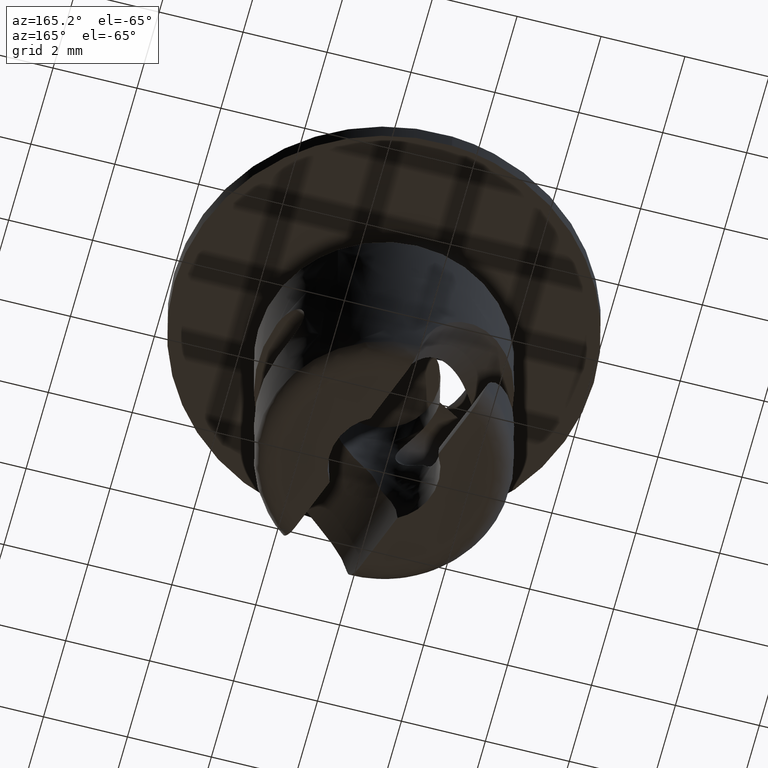
[diagram: clean part render]
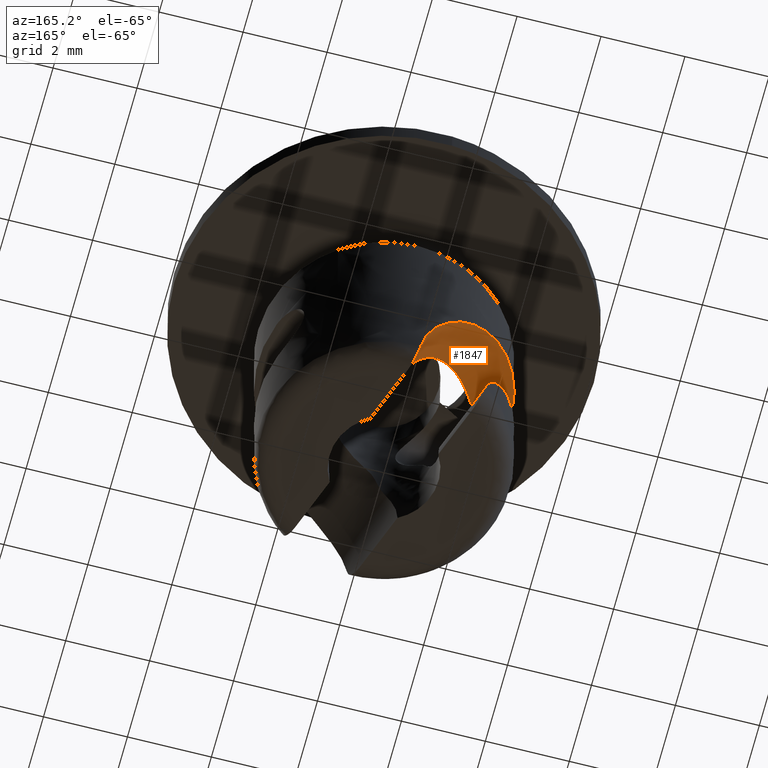
[diagram: same view with one face highlighted and labeled with its STEP entity id]
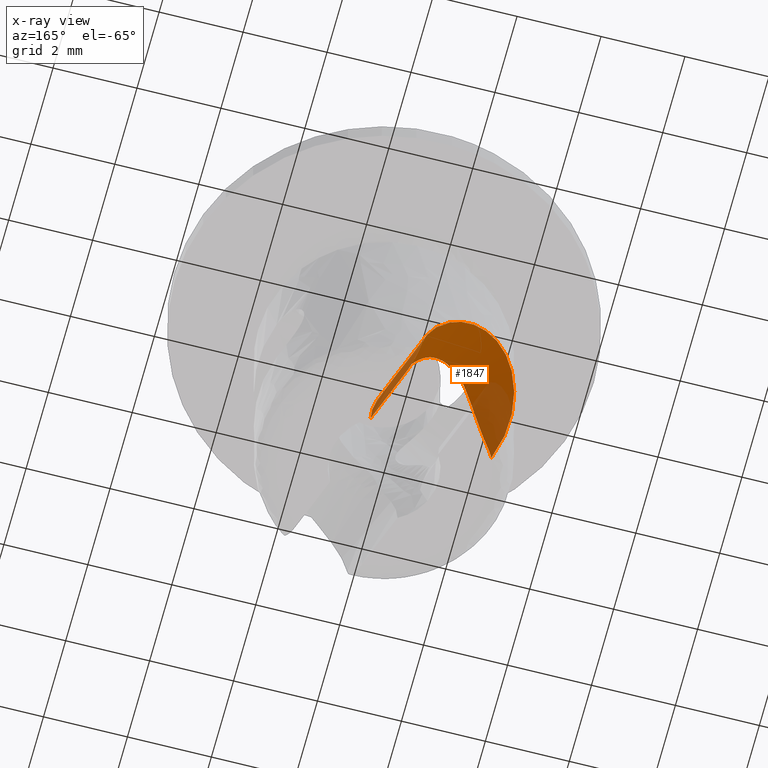
[diagram: x-ray of the same camera — body ghosted, the highlighted face saturated]
A machine part, auxiliary view. The second image highlights one B-rep face of the part: STEP entity #1847.
The next image is the same camera in x-ray: the body ghosted, the highlighted face saturated — about 27% of this face is hidden behind the body in this view.
In plain terms, the highlighted face is a freeform B-spline surface patch.
Its self-contained STEP definition (entity closure, byte-faithful):
#961=CARTESIAN_POINT('',(0.622617727544132,1.141204261010176,-7.400000000000000));
#962=VERTEX_POINT('',#961);
#979=CARTESIAN_POINT('',(0.129273508809591,2.496655434760685,-7.400000000000000));
#980=VERTEX_POINT('',#979);
#981=CARTESIAN_POINT('',(0.622617727544132,1.141204261010176,-7.400000000000000));
#982=CARTESIAN_POINT('',(0.129273508809591,2.496655434760685,-7.400000000000000));
#983=QUASI_UNIFORM_CURVE('',1,(#981,#982),.UNSPECIFIED.,.F.,.U.);
#984=EDGE_CURVE('',#962,#980,#983,.T.);
#1182=CARTESIAN_POINT('',(-2.819077636768030,-1.026061049779424,-3.200000000000000));
#1183=VERTEX_POINT('',#1182);
#1205=CARTESIAN_POINT('',(0.327074163612471,1.258182217128030,-6.001042522368020));
#1206=VERTEX_POINT('',#1205);
#1207=CARTESIAN_POINT('',(0.327074163612471,1.258182217128030,-6.001042522368020));
#1208=CARTESIAN_POINT('',(0.297160822882278,1.306387415373979,-5.968655603151939));
#1209=CARTESIAN_POINT('',(0.238428021352300,1.401035029855732,-5.905066099203100));
#1210=CARTESIAN_POINT('',(0.146580511125379,1.523867997953392,-5.793064256109237));
#1211=CARTESIAN_POINT('',(0.053356301891182,1.627819606234189,-5.671893886555184));
#1212=CARTESIAN_POINT('',(-0.042500015718187,1.711458212268306,-5.540923409864320));
#1213=CARTESIAN_POINT('',(-0.141877534685262,1.774655068140869,-5.401260271351316));
#1214=CARTESIAN_POINT('',(-0.245790647008264,1.816717428023552,-5.253677357550307));
#1215=CARTESIAN_POINT('',(-0.401065727092740,1.847083028196332,-5.035158927700183));
#1216=CARTESIAN_POINT('',(-0.621213557905337,1.812628515502009,-4.733544132776482));
#1217=CARTESIAN_POINT('',(-0.934604013140282,1.633797352816389,-4.343489632897303));
#1218=CARTESIAN_POINT('',(-1.300025947447670,1.308141512217294,-3.963506008242098));
#1219=CARTESIAN_POINT('',(-1.637793963453194,0.896636183380158,-3.686832217401598));
#1220=CARTESIAN_POINT('',(-1.940918809093320,0.397179193438366,-3.476144615445608));
#1221=CARTESIAN_POINT('',(-2.180366141895265,-0.008211556337445,-3.354122071888697));
#1222=CARTESIAN_POINT('',(-2.399010742276171,-0.366100519898799,-3.278165440571633));
#1223=CARTESIAN_POINT('',(-2.513438628017001,-0.540741225558762,-3.248331115126779));
#1224=CARTESIAN_POINT('',(-2.600388778641157,-0.666189648130239,-3.230368089110627));
#1225=CARTESIAN_POINT('',(-2.664787717910890,-0.757118608930589,-3.219084246987745));
#1226=CARTESIAN_POINT('',(-2.729707402255897,-0.848982534875780,-3.209990711441483));
#1227=CARTESIAN_POINT('',(-2.778066178238023,-0.928136177142213,-3.204338282532784));
#1228=CARTESIAN_POINT('',(-2.811584457303801,-0.983039683509505,-3.201188283404195));
#1229=CARTESIAN_POINT('',(-2.817136993439812,-1.014919033520359,-3.200307751105041));
#1230=CARTESIAN_POINT('',(-2.819077636768030,-1.026061049779424,-3.200000000000000));
#1231=B_SPLINE_CURVE_WITH_KNOTS('',3,(#1207,#1208,#1209,#1210,#1211,#1212,#1213,#1214,#1215,#1216,#1217,#1218,#1219,#1220,#1221,#1222,#1223,#1224,#1225,#1226,#1227,#1228,#1229,#1230),.UNSPECIFIED.,.F.,.U.,(4,1,1,1,1,1,1,1,1,1,1,1,1,1,1,1,1,1,1,1,1,4),(0.0,0.033735217297564,0.066236795147011,0.097895978814564,0.129135667579118,0.160395777020048,0.192115358477158,0.224714888653948,0.299555256337571,0.383301690319912,0.496812339854876,0.616488507784937,0.689822469858442,0.816606115545376,0.866754935683801,0.909566513421504,0.925334687406508,0.946009537405301,0.967362844712416,0.983404018732769,0.994199609055653,1.0),.UNSPECIFIED.);
#1232=EDGE_CURVE('',#1206,#1183,#1231,.T.);
#1734=CARTESIAN_POINT('',(0.940698506657678,0.262617061012638,-7.509941010746490));
#1735=CARTESIAN_POINT('',(-0.136713806084479,3.222781036716124,-7.509941010746490));
#1736=CARTESIAN_POINT('',(0.955327241236370,0.267941488606611,-6.946265593221927));
#1737=CARTESIAN_POINT('',(-0.122085071505786,3.228105464310097,-6.946265593221927));
#1738=CARTESIAN_POINT('',(0.863144674924619,0.234389755398708,-6.385226907518290));
#1739=CARTESIAN_POINT('',(-0.214267637817537,3.194553731102194,-6.385226907518290));
#1740=CARTESIAN_POINT('',(0.476150148061066,0.093535170440278,-5.335329519685502));
#1741=CARTESIAN_POINT('',(-0.601262164681090,3.053699146143762,-5.335329519685502));
#1742=CARTESIAN_POINT('',(0.185300685008096,-0.012325449180715,-4.857220881147778));
#1743=CARTESIAN_POINT('',(-0.892111627734060,2.947838526522769,-4.857220881147778));
#1744=CARTESIAN_POINT('',(-0.556417464624153,-0.282288962539192,-4.051700433942662));
#1745=CARTESIAN_POINT('',(-1.633829777366308,2.677875013164291,-4.051700433942663));
#1746=CARTESIAN_POINT('',(-0.999691583040992,-0.443627657632502,-3.732536475143270));
#1747=CARTESIAN_POINT('',(-2.077103895783147,2.516536318070981,-3.732536475143272));
#1748=CARTESIAN_POINT('',(-1.978207369437935,-0.799778521277171,-3.299462900561080));
#1749=CARTESIAN_POINT('',(-3.055619682180090,2.160385454426311,-3.299462900561081));
#1750=CARTESIAN_POINT('',(-2.503429861210069,-0.990944005422329,-3.189987592854934));
#1751=CARTESIAN_POINT('',(-3.580842173952225,1.969219970281153,-3.189987592854936));
#1752=CARTESIAN_POINT('',(-3.033299316952162,-1.183800847289287,-3.194101489152588));
#1753=CARTESIAN_POINT('',(-4.110711629694318,1.776363128414194,-3.194101489152589));
#1754=B_SPLINE_SURFACE_WITH_KNOTS('',1,3,((#1734,#1736,#1738,#1740,#1742,#1744,#1746,#1748,#1750,#1752),(#1735,#1737,#1739,#1741,#1743,#1745,#1747,#1749,#1751,#1753)),.UNSPECIFIED.,.F.,.F.,.U.,(2,2),(4,2,2,2,4),(0.0,3.150140957909832),(0.0,1.0,2.0,3.0,4.0),.UNSPECIFIED.);
#1755=CARTESIAN_POINT('',(0.622617727544132,1.141204261010176,-7.400000000000000));
#1756=CARTESIAN_POINT('',(0.622848788079151,1.141078199103339,-7.278401482902570));
#1757=CARTESIAN_POINT('',(0.616050014739624,1.144861052318756,-7.158138365991265));
#1758=CARTESIAN_POINT('',(0.589502358077401,1.158754253324793,-6.920010740040525));
#1759=CARTESIAN_POINT('',(0.569767404173812,1.168827894483458,-6.802141548273665));
#1760=CARTESIAN_POINT('',(0.531392888734179,1.186515900967262,-6.626842366704982));
#1761=CARTESIAN_POINT('',(0.517138856889124,1.192834905839674,-6.568659687892410));
#1762=CARTESIAN_POINT('',(0.485840597118145,1.205921483383567,-6.452746799921952));
#1763=CARTESIAN_POINT('',(0.468756779069347,1.212702161289256,-6.394903287423515));
#1764=CARTESIAN_POINT('',(0.413939186806535,1.232952614378313,-6.223319429714369));
#1765=CARTESIAN_POINT('',(0.372601975094921,1.246346911669878,-6.111223322724358));
#1766=CARTESIAN_POINT('',(0.327074163612471,1.258182217128030,-6.001042522368020));
#1767=B_SPLINE_CURVE_WITH_KNOTS('',3,(#1755,#1756,#1757,#1758,#1759,#1760,#1761,#1762,#1763,#1764,#1765,#1766),.UNSPECIFIED.,.F.,.U.,(4,2,2,2,2,4),(0.0,0.250000000000000,0.500000000000000,0.625000000000000,0.750000000000000,1.0),.UNSPECIFIED.);
#1768=EDGE_CURVE('',#962,#1206,#1767,.T.);
#1769=ORIENTED_EDGE('',*,*,#1768,.T.);
#1770=ORIENTED_EDGE('',*,*,#1232,.T.);
#1771=CARTESIAN_POINT('',(-0.084513880760795,2.998809331044365,-6.900000000000000));
#1772=VERTEX_POINT('',#1771);
#1773=CARTESIAN_POINT('',(-2.819077636768030,-1.026061049779424,-3.200000000000000));
#1774=CARTESIAN_POINT('',(-2.873550972533298,-0.876396892184820,-3.200000000000014));
#1775=CARTESIAN_POINT('',(-2.915453257440908,-0.724426621176468,-3.200620960101949));
#1776=CARTESIAN_POINT('',(-2.975154664067936,-0.416072530536141,-3.203704992722730));
#1777=CARTESIAN_POINT('',(-2.992951893773923,-0.259688294556457,-3.206162579722587));
#1778=CARTESIAN_POINT('',(-2.999634688395524,-0.061373257389993,-3.211644033070710));
#1779=CARTESIAN_POINT('',(-3.000185054679621,-0.021507609498423,-3.212867260930302));
#1780=CARTESIAN_POINT('',(-2.999705113013827,0.057811543380187,-3.215584441225255));
#1781=CARTESIAN_POINT('',(-2.996627406675537,0.176399277104420,-3.220072589589952));
#1782=CARTESIAN_POINT('',(-2.986605089649258,0.293820577257775,-3.225976006410372));
#1783=CARTESIAN_POINT('',(-2.957487717714053,0.527094272522938,-3.240242224863573));
#1784=CARTESIAN_POINT('',(-2.926028094709749,0.680529320736896,-3.252982869026257));
#1785=CARTESIAN_POINT('',(-2.860590790118135,0.907309469445002,-3.279980962199737));
#1786=CARTESIAN_POINT('',(-2.835602913669079,0.982587445909025,-3.290360778736338));
#1787=CARTESIAN_POINT('',(-2.780528962189128,1.129061850960359,-3.313932652697721));
#1788=CARTESIAN_POINT('',(-2.750371320043353,1.200582192634356,-3.327153070128216));
#1789=CARTESIAN_POINT('',(-2.652459666878137,1.410041741628936,-3.371791994183104));
#1790=CARTESIAN_POINT('',(-2.577290539921757,1.542900104226222,-3.408154750175014));
#1791=CARTESIAN_POINT('',(-2.450834805110072,1.731805581686016,-3.475779004500222));
#1792=CARTESIAN_POINT('',(-2.406135910051407,1.793342818281664,-3.500663561705135));
#1793=CARTESIAN_POINT('',(-2.313999938761264,1.910751884712975,-3.554430318977048));
#1794=CARTESIAN_POINT('',(-2.266516013630884,1.966756447840507,-3.583324688457430));
#1795=CARTESIAN_POINT('',(-2.120476966474755,2.127082625409792,-3.676393134085370));
#1796=CARTESIAN_POINT('',(-2.018344502276162,2.223734870477811,-3.746939650928855));
#1797=CARTESIAN_POINT('',(-1.860287265590625,2.354571960143732,-3.867088813895853));
#1798=CARTESIAN_POINT('',(-1.806664794096661,2.395887459567101,-3.909649710559402));
#1799=CARTESIAN_POINT('',(-1.700069317336438,2.472666316628760,-3.998204176422849));
#1800=CARTESIAN_POINT('',(-1.646873673598775,2.508328226089166,-4.044357093658393));
#1801=CARTESIAN_POINT('',(-1.488086701576572,2.607913249121752,-4.188463120588741));
#1802=CARTESIAN_POINT('',(-1.383297055922477,2.664458477860601,-4.292050562019399));
#1803=CARTESIAN_POINT('',(-1.229537073905440,2.737051518547600,-4.459003779661253));
#1804=CARTESIAN_POINT('',(-1.179033512583073,2.759110629549861,-4.516410316684110));
#1805=CARTESIAN_POINT('',(-1.080795796758134,2.799051970864237,-4.633446885482379));
#1806=CARTESIAN_POINT('',(-1.032895332989122,2.817013256605606,-4.693254826886947));
#1807=CARTESIAN_POINT('',(-0.893045203287020,2.865696441023730,-4.876502538980319));
#1808=CARTESIAN_POINT('',(-0.804936606905441,2.891241852757484,-5.003753789994796));
#1809=CARTESIAN_POINT('',(-0.681383857218495,2.921902913717402,-5.202308153453269));
#1810=CARTESIAN_POINT('',(-0.641636892288733,2.930840169511570,-5.269775616435576));
#1811=CARTESIAN_POINT('',(-0.565205892206523,2.946534286273213,-5.407322389132385));
#1812=CARTESIAN_POINT('',(-0.528436695903858,2.953302858642278,-5.477590836226539));
#1813=CARTESIAN_POINT('',(-0.424105008883442,2.970708233268607,-5.690181386340784));
#1814=CARTESIAN_POINT('',(-0.362212268531800,2.978547339912875,-5.834715356492886));
#1815=CARTESIAN_POINT('',(-0.254306355349250,2.989694007955666,-6.129474435420192));
#1816=CARTESIAN_POINT('',(-0.208292826599077,2.992996566868002,-6.279699614013794));
#1817=CARTESIAN_POINT('',(-0.133199036840523,2.997277492572392,-6.586121761374924));
#1818=CARTESIAN_POINT('',(-0.104112849850440,2.998256983511118,-6.742906721966787));
#1819=CARTESIAN_POINT('',(-0.084513880760795,2.998809331044365,-6.900000000000000));
#1820=B_SPLINE_CURVE_WITH_KNOTS('',3,(#1773,#1774,#1775,#1776,#1777,#1778,#1779,#1780,#1781,#1782,#1783,#1784,#1785,#1786,#1787,#1788,#1789,#1790,#1791,#1792,#1793,#1794,#1795,#1796,#1797,#1798,#1799,#1800,#1801,#1802,#1803,#1804,#1805,#1806,#1807,#1808,#1809,#1810,#1811,#1812,#1813,#1814,#1815,#1816,#1817,#1818,#1819),.UNSPECIFIED.,.F.,.U.,(4,2,2,2,1,2,2,2,2,2,2,2,2,2,2,2,2,2,2,2,2,2,2,4),(0.0,0.062500000000000,0.125000000000000,0.140625000000000,0.156250000000000,0.187500000000000,0.250000000000000,0.281250000000000,0.312500000000000,0.375000000000000,0.406250000000000,0.437500000000000,0.500000000000000,0.531250000000001,0.562500000000001,0.625000000000001,0.656250000000001,0.687500000000001,0.750000000000001,0.781250000000001,0.812500000000001,0.875000000000001,0.937500000000000,1.0),.UNSPECIFIED.);
#1821=EDGE_CURVE('',#1183,#1772,#1820,.T.);
#1822=ORIENTED_EDGE('',*,*,#1821,.T.);
#1823=CARTESIAN_POINT('',(-0.084513880760795,2.998809331044365,-6.900000000000000));
#1824=CARTESIAN_POINT('',(-0.080249640827646,2.998929507896394,-6.934179523748181));
#1825=CARTESIAN_POINT('',(-0.075266717654299,2.995591923318556,-6.967668315390088));
#1826=CARTESIAN_POINT('',(-0.063882605638620,2.982380328953163,-7.033330311159738));
#1827=CARTESIAN_POINT('',(-0.057394389934086,2.972329246874970,-7.065851533563914));
#1828=CARTESIAN_POINT('',(-0.043265946801209,2.946272948323144,-7.127336415637839));
#1829=CARTESIAN_POINT('',(-0.035640559682033,2.930354550876194,-7.156354816391502));
#1830=CARTESIAN_POINT('',(-0.019086528760595,2.892879908489273,-7.210973620549294));
#1831=CARTESIAN_POINT('',(-0.010145760742198,2.871262656642815,-7.236496990878765));
#1832=CARTESIAN_POINT('',(0.008499485151161,2.824302943575925,-7.281965370563245));
#1833=CARTESIAN_POINT('',(0.018292046451576,2.798765280771810,-7.302225975906249));
#1834=CARTESIAN_POINT('',(0.039037932293067,2.743595936780727,-7.337727951273236));
#1835=CARTESIAN_POINT('',(0.049691805990631,2.714764971014943,-7.352448876695371));
#1836=CARTESIAN_POINT('',(0.071631319478530,2.654976445000061,-7.376139308437509));
#1837=CARTESIAN_POINT('',(0.083029779238904,2.623706784345687,-7.385166526157225));
#1838=CARTESIAN_POINT('',(0.106071620560561,2.560423655039486,-7.397083143075067));
#1839=CARTESIAN_POINT('',(0.117640795038969,2.528616031309302,-7.400000000000237));
#1840=CARTESIAN_POINT('',(0.129273508809768,2.496655434760764,-7.400000000000238));
#1841=B_SPLINE_CURVE_WITH_KNOTS('',3,(#1823,#1824,#1825,#1826,#1827,#1828,#1829,#1830,#1831,#1832,#1833,#1834,#1835,#1836,#1837,#1838,#1839,#1840),.UNSPECIFIED.,.F.,.U.,(4,2,2,2,2,2,2,2,4),(0.0,0.125000000000000,0.250000000000000,0.375000000000000,0.500000000000000,0.625000000000000,0.750000000000000,0.875000000000000,1.0),.UNSPECIFIED.);
#1842=EDGE_CURVE('',#1772,#980,#1841,.T.);
#1843=ORIENTED_EDGE('',*,*,#1842,.T.);
#1844=ORIENTED_EDGE('',*,*,#984,.F.);
#1845=EDGE_LOOP('',(#1769,#1770,#1822,#1843,#1844));
#1846=FACE_OUTER_BOUND('',#1845,.T.);
#1847=ADVANCED_FACE('',(#1846),#1754,.F.);